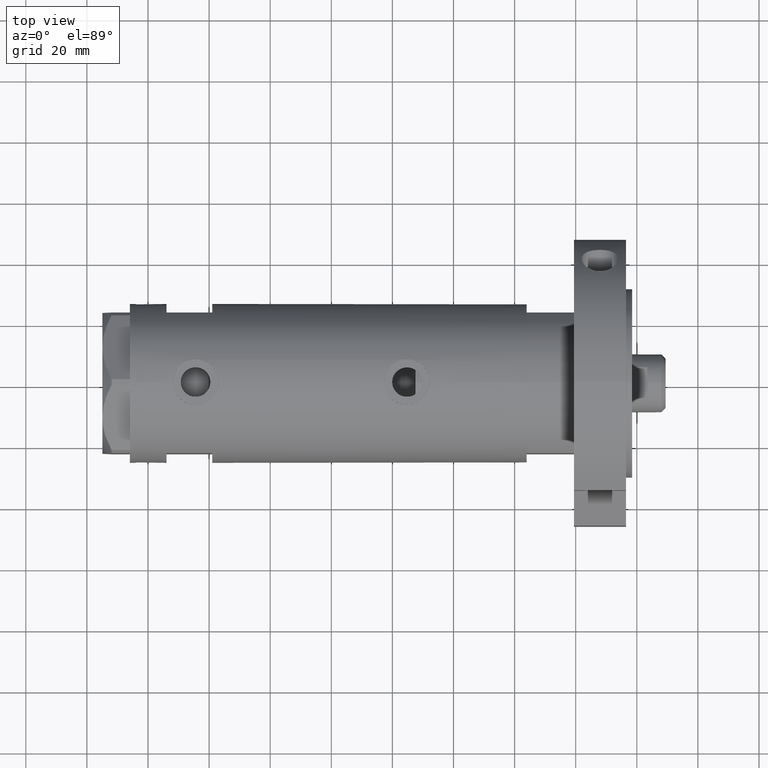
[diagram: clean part render]
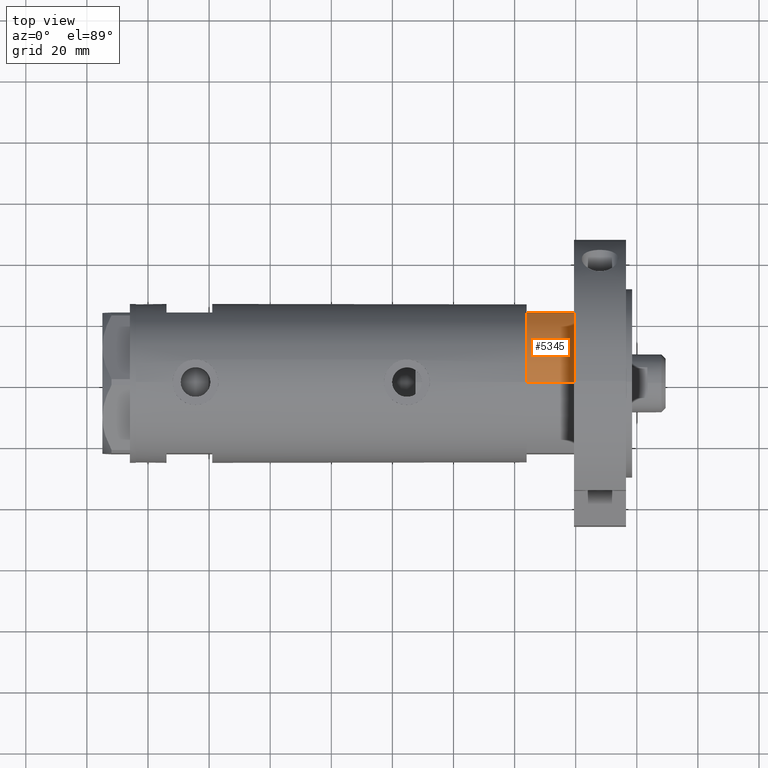
[diagram: same view with one face highlighted and labeled with its STEP entity id]
A machine part, top view. The second image highlights one B-rep face of the part: STEP entity #5345.
In plain terms, the highlighted cylindrical surface (partial cylindrical patch) has radius 26 mm, axis along (-1, -0, 0).
Its self-contained STEP definition (entity closure, byte-faithful):
#455 = AXIS2_PLACEMENT_3D ( 'NONE', #3714, #3203, #694 ) ;
#694 = DIRECTION ( 'NONE',  ( -1.000000000000000000, 0.000000000000000000, 0.000000000000000000 ) ) ;
#837 = EDGE_CURVE ( 'NONE', #3155, #5728, #6521, .T. ) ;
#886 = DIRECTION ( 'NONE',  ( 0.000000000000000000, 0.000000000000000000, 1.000000000000000000 ) ) ;
#924 = ORIENTED_EDGE ( 'NONE', *, *, #6167, .F. ) ;
#1302 = DIRECTION ( 'NONE',  ( -0.000000000000000000, -0.000000000000000000, -1.000000000000000000 ) ) ;
#1331 = CYLINDRICAL_SURFACE ( 'NONE', #455, 26.00000000000000355 ) ;
#1412 = ORIENTED_EDGE ( 'NONE', *, *, #4664, .T. ) ;
#1630 = EDGE_LOOP ( 'NONE', ( #924, #4258, #1798, #1412 ) ) ;
#1781 = LINE ( 'NONE', #6046, #2796 ) ;
#1798 = ORIENTED_EDGE ( 'NONE', *, *, #3090, .F. ) ;
#1863 = CARTESIAN_POINT ( 'NONE',  ( -26.00000000000000355, 0.000000000000000000, 15.50000000000000000 ) ) ;
#1914 = CARTESIAN_POINT ( 'NONE',  ( 0.000000000000000000, 0.000000000000000000, 15.50000000000000000 ) ) ;
#2095 = CIRCLE ( 'NONE', #4279, 26.00000000000000355 ) ;
#2796 = VECTOR ( 'NONE', #6803, 1000.000000000000000 ) ;
#3035 = CARTESIAN_POINT ( 'NONE',  ( -26.00000000000000355, 0.000000000000000000, 15.50000000000000000 ) ) ;
#3090 = EDGE_CURVE ( 'NONE', #7784, #3155, #1781, .T. ) ;
#3155 = VERTEX_POINT ( 'NONE', #4867 ) ;
#3203 = DIRECTION ( 'NONE',  ( -0.000000000000000000, -0.000000000000000000, -1.000000000000000000 ) ) ;
#3714 = CARTESIAN_POINT ( 'NONE',  ( 0.000000000000000000, 0.000000000000000000, 15.50000000000000000 ) ) ;
#3941 = CARTESIAN_POINT ( 'NONE',  ( 0.000000000000000000, 0.000000000000000000, 0.000000000000000000 ) ) ;
#4258 = ORIENTED_EDGE ( 'NONE', *, *, #837, .F. ) ;
#4279 = AXIS2_PLACEMENT_3D ( 'NONE', #3941, #886, #5123 ) ;
#4383 = DIRECTION ( 'NONE',  ( 0.000000000000000000, 0.000000000000000000, 1.000000000000000000 ) ) ;
#4664 = EDGE_CURVE ( 'NONE', #7784, #6326, #2095, .T. ) ;
#4867 = CARTESIAN_POINT ( 'NONE',  ( -12.12435565298214613, 23.00000000000000355, 15.50000000000000000 ) ) ;
#5123 = DIRECTION ( 'NONE',  ( 1.000000000000000000, 0.000000000000000000, 0.000000000000000000 ) ) ;
#5129 = DIRECTION ( 'NONE',  ( 1.000000000000000000, 0.000000000000000000, 0.000000000000000000 ) ) ;
#5227 = CARTESIAN_POINT ( 'NONE',  ( -26.00000000000000355, 0.000000000000000000, 0.000000000000000000 ) ) ;
#5336 = VECTOR ( 'NONE', #1302, 1000.000000000000000 ) ;
#5345 = ADVANCED_FACE ( 'NONE', ( #7954 ), #1331, .T. ) ;
#5595 = LINE ( 'NONE', #1863, #5336 ) ;
#5728 = VERTEX_POINT ( 'NONE', #3035 ) ;
#6046 = CARTESIAN_POINT ( 'NONE',  ( -12.12435565298215145, 23.00000000000000355, 0.000000000000000000 ) ) ;
#6167 = EDGE_CURVE ( 'NONE', #5728, #6326, #5595, .T. ) ;
#6326 = VERTEX_POINT ( 'NONE', #5227 ) ;
#6521 = CIRCLE ( 'NONE', #7541, 26.00000000000000355 ) ;
#6803 = DIRECTION ( 'NONE',  ( -0.000000000000000000, -0.000000000000000000, 1.000000000000000000 ) ) ;
#6828 = CARTESIAN_POINT ( 'NONE',  ( -12.12435565298215145, 23.00000000000000355, 0.000000000000000000 ) ) ;
#7541 = AXIS2_PLACEMENT_3D ( 'NONE', #1914, #4383, #5129 ) ;
#7784 = VERTEX_POINT ( 'NONE', #6828 ) ;
#7954 = FACE_OUTER_BOUND ( 'NONE', #1630, .T. ) ;